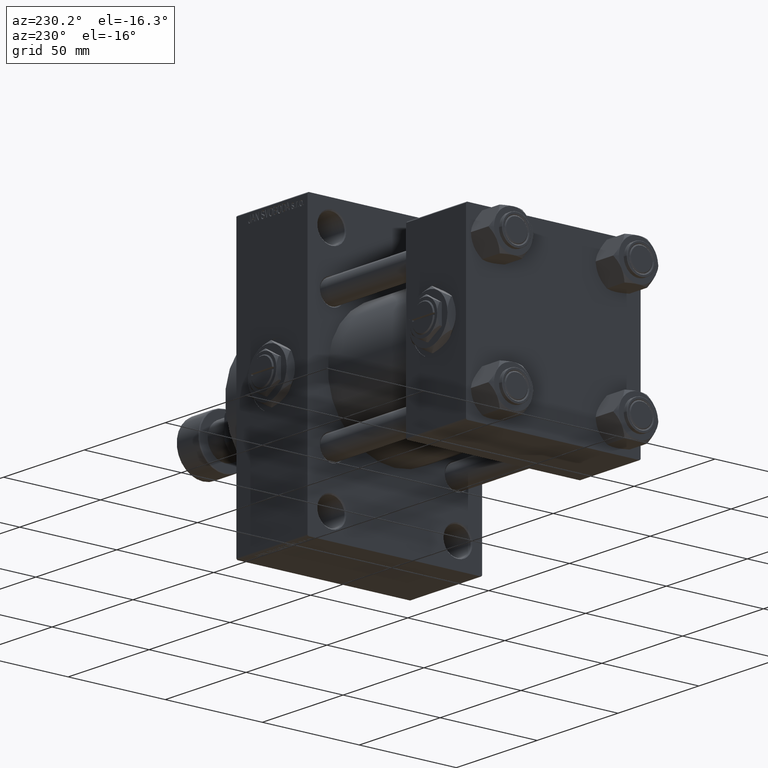
[diagram: clean part render]
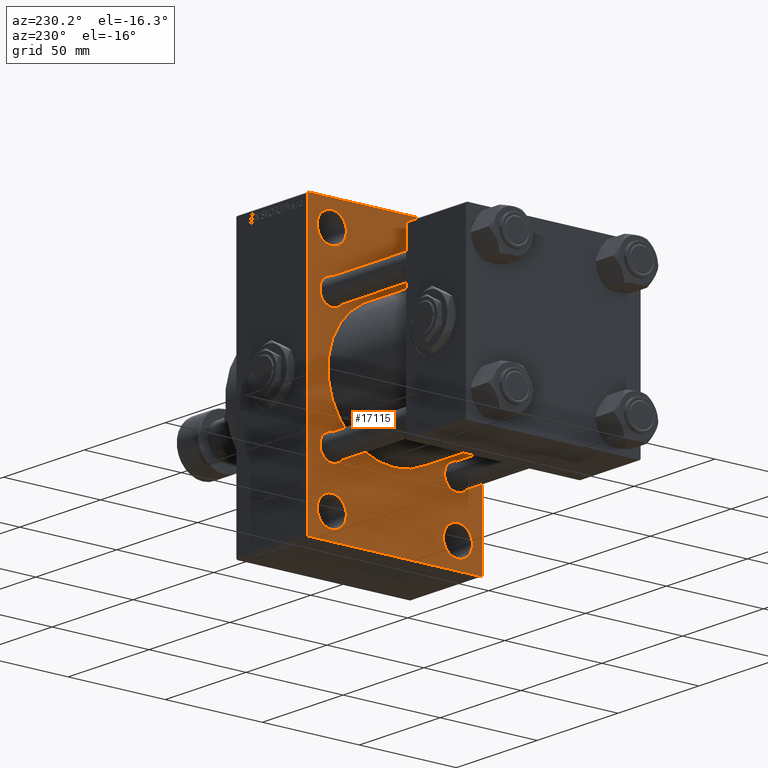
[diagram: same view with one face highlighted and labeled with its STEP entity id]
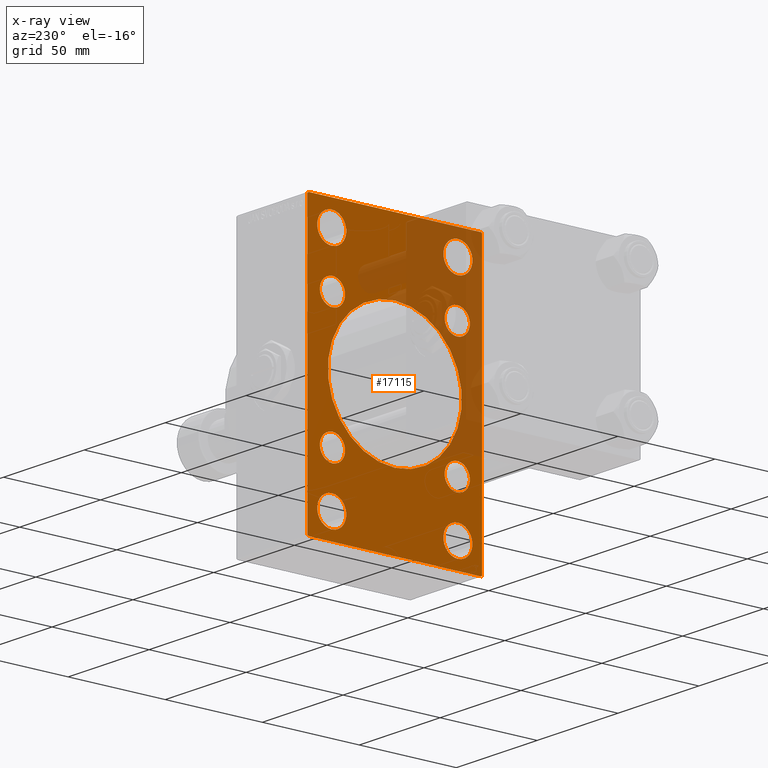
[diagram: x-ray of the same camera — body ghosted, the highlighted face saturated]
A machine part, auxiliary view. The second image highlights one B-rep face of the part: STEP entity #17115.
The next image is the same camera in x-ray: the body ghosted, the highlighted face saturated — about 30% of this face is hidden behind the body in this view.
In plain terms, the highlighted planar face has unit normal (-1, 0, 0).
Its self-contained STEP definition (entity closure, byte-faithful):
#410 = EDGE_CURVE ( 'NONE', #43009, #24947, #30608, .T. ) ;
#615 = EDGE_CURVE ( 'NONE', #5200, #47002, #43869, .T. ) ;
#706 = FACE_BOUND ( 'NONE', #48557, .T. ) ;
#710 = DIRECTION ( 'NONE',  ( 0.000000000000000000, 0.7071067811865672237, -0.7071067811865279218 ) ) ;
#942 = FACE_BOUND ( 'NONE', #14683, .T. ) ;
#1023 = DIRECTION ( 'NONE',  ( 1.000000000000000000, 0.000000000000000000, 0.000000000000000000 ) ) ;
#1191 = VECTOR ( 'NONE', #40916, 999.9999999999998863 ) ;
#1874 = VECTOR ( 'NONE', #29999, 1000.000000000000000 ) ;
#1892 = CARTESIAN_POINT ( 'NONE',  ( 98.00000000000000000, 32.14999999999999147, -32.15000000000000568 ) ) ;
#1914 = DIRECTION ( 'NONE',  ( 1.000000000000000000, -0.000000000000000000, 0.000000000000000000 ) ) ;
#1969 = ORIENTED_EDGE ( 'NONE', *, *, #615, .T. ) ;
#1976 = CARTESIAN_POINT ( 'NONE',  ( 98.00000000000000000, 32.50000000000000711, -58.50000000000000000 ) ) ;
#2140 = LINE ( 'NONE', #48174, #27123 ) ;
#2181 = VERTEX_POINT ( 'NONE', #29691 ) ;
#2816 = DIRECTION ( 'NONE',  ( 1.000000000000000000, -0.000000000000000000, 0.000000000000000000 ) ) ;
#3197 = DIRECTION ( 'NONE',  ( 1.000000000000000000, -0.000000000000000000, 0.000000000000000000 ) ) ;
#3793 = CARTESIAN_POINT ( 'NONE',  ( 98.00000000000000000, 45.00000000000001421, -70.50000000000001421 ) ) ;
#4529 = VERTEX_POINT ( 'NONE', #30896 ) ;
#4690 = VERTEX_POINT ( 'NONE', #20819 ) ;
#4801 = CARTESIAN_POINT ( 'NONE',  ( 98.00000000000000000, -44.49999999999994316, -71.00000000000000000 ) ) ;
#4820 = CARTESIAN_POINT ( 'NONE',  ( 98.00000000000000000, -2.602085213965210642E-15, 0.000000000000000000 ) ) ;
#5196 = DIRECTION ( 'NONE',  ( 0.000000000000000000, 0.000000000000000000, 1.000000000000000000 ) ) ;
#5200 = VERTEX_POINT ( 'NONE', #48022 ) ;
#5325 = CIRCLE ( 'NONE', #41496, 6.500000000000005329 ) ;
#5698 = DIRECTION ( 'NONE',  ( 0.000000000000000000, 0.000000000000000000, 1.000000000000000000 ) ) ;
#5909 = CIRCLE ( 'NONE', #8327, 7.499999999999951150 ) ;
#5949 = AXIS2_PLACEMENT_3D ( 'NONE', #8978, #39665, #5196 ) ;
#6120 = CIRCLE ( 'NONE', #29444, 7.499999999999951150 ) ;
#6475 = DIRECTION ( 'NONE',  ( 0.000000000000000000, 0.000000000000000000, 1.000000000000000000 ) ) ;
#6704 = AXIS2_PLACEMENT_3D ( 'NONE', #20957, #2816, #25485 ) ;
#6754 = CARTESIAN_POINT ( 'NONE',  ( 98.00000000000000000, -57.75000000000059686, -57.74999999999899103 ) ) ;
#6828 = VERTEX_POINT ( 'NONE', #8085 ) ;
#7355 = CARTESIAN_POINT ( 'NONE',  ( 98.00000000000000000, 32.14999999999999147, -38.65000000000001279 ) ) ;
#7571 = CARTESIAN_POINT ( 'NONE',  ( 98.00000000000000000, 44.50000000000004263, -70.99999999999998579 ) ) ;
#7825 = CIRCLE ( 'NONE', #25497, 6.500000000000005329 ) ;
#7866 = EDGE_CURVE ( 'NONE', #34060, #4529, #24382, .T. ) ;
#8085 = CARTESIAN_POINT ( 'NONE',  ( 98.00000000000000000, -32.50000000000000000, 51.00000000000005684 ) ) ;
#8258 = EDGE_CURVE ( 'NONE', #31623, #45007, #46086, .T. ) ;
#8279 = LINE ( 'NONE', #38964, #33586 ) ;
#8327 = AXIS2_PLACEMENT_3D ( 'NONE', #42895, #8944, #39145 ) ;
#8785 = AXIS2_PLACEMENT_3D ( 'NONE', #12949, #47637, #29047 ) ;
#8944 = DIRECTION ( 'NONE',  ( 1.000000000000000000, -0.000000000000000000, 0.000000000000000000 ) ) ;
#8978 = CARTESIAN_POINT ( 'NONE',  ( 98.00000000000000000, 32.50000000000000711, 58.50000000000000711 ) ) ;
#9177 = DIRECTION ( 'NONE',  ( 0.000000000000000000, -4.886545002751570165E-17, -1.000000000000000000 ) ) ;
#9608 = VERTEX_POINT ( 'NONE', #21363 ) ;
#9791 = EDGE_CURVE ( 'NONE', #23404, #2181, #36525, .T. ) ;
#10305 = CIRCLE ( 'NONE', #39240, 6.499999999999999112 ) ;
#10592 = ORIENTED_EDGE ( 'NONE', *, *, #26551, .T. ) ;
#10739 = CIRCLE ( 'NONE', #6704, 7.499999999999958256 ) ;
#10779 = AXIS2_PLACEMENT_3D ( 'NONE', #1892, #29592, #17016 ) ;
#11449 = VERTEX_POINT ( 'NONE', #18115 ) ;
#11819 = DIRECTION ( 'NONE',  ( 0.000000000000000000, 0.000000000000000000, 1.000000000000000000 ) ) ;
#11851 = CARTESIAN_POINT ( 'NONE',  ( 98.00000000000000000, 32.14999999999999147, 25.65000000000000213 ) ) ;
#11860 = DIRECTION ( 'NONE',  ( 0.000000000000000000, 0.000000000000000000, 1.000000000000000000 ) ) ;
#11890 = EDGE_CURVE ( 'NONE', #33746, #6828, #5909, .T. ) ;
#12016 = CIRCLE ( 'NONE', #8785, 7.499999999999958256 ) ;
#12232 = ORIENTED_EDGE ( 'NONE', *, *, #9791, .T. ) ;
#12289 = PLANE ( 'NONE',  #12518 ) ;
#12518 = AXIS2_PLACEMENT_3D ( 'NONE', #19857, #35934, #19606 ) ;
#12600 = CARTESIAN_POINT ( 'NONE',  ( 98.00000000000000000, -44.99999999999997158, 70.99999999999998579 ) ) ;
#12949 = CARTESIAN_POINT ( 'NONE',  ( 98.00000000000000000, -32.50000000000000000, -58.49999999999999289 ) ) ;
#13488 = EDGE_CURVE ( 'NONE', #9608, #14168, #46055, .T. ) ;
#13558 = ORIENTED_EDGE ( 'NONE', *, *, #33941, .T. ) ;
#13813 = DIRECTION ( 'NONE',  ( 0.000000000000000000, -0.7071067811865376918, 0.7071067811865574537 ) ) ;
#13823 = CIRCLE ( 'NONE', #30707, 6.500000000000005329 ) ;
#14168 = VERTEX_POINT ( 'NONE', #34354 ) ;
#14320 = DIRECTION ( 'NONE',  ( 0.000000000000000000, 0.000000000000000000, 1.000000000000000000 ) ) ;
#14324 = CIRCLE ( 'NONE', #45614, 34.50000000000000000 ) ;
#14399 = EDGE_CURVE ( 'NONE', #20987, #43864, #38132, .T. ) ;
#14413 = DIRECTION ( 'NONE',  ( 1.000000000000000000, -0.000000000000000000, 0.000000000000000000 ) ) ;
#14683 = EDGE_LOOP ( 'NONE', ( #22607, #37322 ) ) ;
#14897 = CARTESIAN_POINT ( 'NONE',  ( 98.00000000000000000, -32.50000000000000000, 58.50000000000000711 ) ) ;
#15476 = DIRECTION ( 'NONE',  ( 1.000000000000000000, -0.000000000000000000, 0.000000000000000000 ) ) ;
#15645 = DIRECTION ( 'NONE',  ( 0.000000000000000000, 0.000000000000000000, -1.000000000000000000 ) ) ;
#16317 = FACE_BOUND ( 'NONE', #28463, .T. ) ;
#17016 = DIRECTION ( 'NONE',  ( 0.000000000000000000, 0.000000000000000000, 1.000000000000000000 ) ) ;
#17115 = ADVANCED_FACE ( 'NONE', ( #24359, #23384, #28382, #16317, #28134, #942, #46729, #706, #31661, #20340 ), #12289, .T. ) ;
#17540 = CARTESIAN_POINT ( 'NONE',  ( 98.00000000000000000, 57.74999999999938893, -57.75000000000100187 ) ) ;
#17615 = CARTESIAN_POINT ( 'NONE',  ( 98.00000000000000000, 44.49999999999999289, 71.00000000000000000 ) ) ;
#17940 = CARTESIAN_POINT ( 'NONE',  ( 98.00000000000000000, -32.14999999999997726, 32.15000000000001279 ) ) ;
#18085 = EDGE_LOOP ( 'NONE', ( #30274, #13558, #19623, #46462, #48767, #30998, #1969, #36318 ) ) ;
#18115 = CARTESIAN_POINT ( 'NONE',  ( 98.00000000000000000, 32.14999999999999147, 38.65000000000001279 ) ) ;
#18223 = EDGE_CURVE ( 'NONE', #2181, #23404, #6120, .T. ) ;
#18284 = CIRCLE ( 'NONE', #32748, 7.499999999999951150 ) ;
#18387 = AXIS2_PLACEMENT_3D ( 'NONE', #24887, #28407, #40471 ) ;
#18461 = EDGE_CURVE ( 'NONE', #45007, #31623, #5325, .T. ) ;
#18593 = CARTESIAN_POINT ( 'NONE',  ( 98.00000000000000000, -2.602085213965210642E-15, 34.50000000000000000 ) ) ;
#18754 = CARTESIAN_POINT ( 'NONE',  ( 98.00000000000000000, 32.50000000000000711, 58.50000000000000711 ) ) ;
#19062 = EDGE_CURVE ( 'NONE', #43864, #20987, #30313, .T. ) ;
#19606 = DIRECTION ( 'NONE',  ( -0.000000000000000000, 0.000000000000000000, 1.000000000000000000 ) ) ;
#19623 = ORIENTED_EDGE ( 'NONE', *, *, #13488, .F. ) ;
#19857 = CARTESIAN_POINT ( 'NONE',  ( 98.00000000000000000, 0.000000000000000000, 0.000000000000000000 ) ) ;
#20088 = EDGE_CURVE ( 'NONE', #21750, #45343, #7825, .T. ) ;
#20340 = FACE_OUTER_BOUND ( 'NONE', #18085, .T. ) ;
#20489 = EDGE_CURVE ( 'NONE', #22359, #30873, #2140, .T. ) ;
#20812 = EDGE_CURVE ( 'NONE', #22600, #5200, #8279, .T. ) ;
#20819 = CARTESIAN_POINT ( 'NONE',  ( 98.00000000000000000, -32.50000000000000000, -51.00000000000002842 ) ) ;
#20957 = CARTESIAN_POINT ( 'NONE',  ( 98.00000000000000000, -32.50000000000000000, -58.49999999999999289 ) ) ;
#20987 = VERTEX_POINT ( 'NONE', #41440 ) ;
#21363 = CARTESIAN_POINT ( 'NONE',  ( 98.00000000000000000, -44.99999999999997158, 70.49999999999998579 ) ) ;
#21437 = AXIS2_PLACEMENT_3D ( 'NONE', #30939, #46258, #11819 ) ;
#21605 = EDGE_CURVE ( 'NONE', #11449, #23579, #10305, .T. ) ;
#21750 = VERTEX_POINT ( 'NONE', #28211 ) ;
#21873 = DIRECTION ( 'NONE',  ( 1.000000000000000000, -0.000000000000000000, 0.000000000000000000 ) ) ;
#22359 = VERTEX_POINT ( 'NONE', #7571 ) ;
#22484 = EDGE_LOOP ( 'NONE', ( #37524, #34005 ) ) ;
#22600 = VERTEX_POINT ( 'NONE', #17615 ) ;
#22607 = ORIENTED_EDGE ( 'NONE', *, *, #21605, .T. ) ;
#22885 = VECTOR ( 'NONE', #15645, 1000.000000000000000 ) ;
#23384 = FACE_BOUND ( 'NONE', #22484, .T. ) ;
#23404 = VERTEX_POINT ( 'NONE', #45802 ) ;
#23579 = VERTEX_POINT ( 'NONE', #11851 ) ;
#24359 = FACE_BOUND ( 'NONE', #42376, .T. ) ;
#24382 = CIRCLE ( 'NONE', #45256, 34.50000000000000000 ) ;
#24887 = CARTESIAN_POINT ( 'NONE',  ( 98.00000000000000000, 32.50000000000000711, -58.50000000000000000 ) ) ;
#24947 = VERTEX_POINT ( 'NONE', #45648 ) ;
#25058 = ORIENTED_EDGE ( 'NONE', *, *, #7866, .T. ) ;
#25456 = ORIENTED_EDGE ( 'NONE', *, *, #18223, .T. ) ;
#25485 = DIRECTION ( 'NONE',  ( 0.000000000000000000, 0.000000000000000000, 1.000000000000000000 ) ) ;
#25497 = AXIS2_PLACEMENT_3D ( 'NONE', #48471, #44445, #6475 ) ;
#25499 = ORIENTED_EDGE ( 'NONE', *, *, #41694, .T. ) ;
#25622 = CARTESIAN_POINT ( 'NONE',  ( 98.00000000000000000, 32.14999999999999147, 32.15000000000000568 ) ) ;
#25647 = LINE ( 'NONE', #6754, #36598 ) ;
#25672 = CARTESIAN_POINT ( 'NONE',  ( 98.00000000000000000, -32.50000000000000000, -65.99999999999994316 ) ) ;
#26551 = EDGE_CURVE ( 'NONE', #45343, #21750, #13823, .T. ) ;
#27123 = VECTOR ( 'NONE', #44388, 1000.000000000000000 ) ;
#27171 = CARTESIAN_POINT ( 'NONE',  ( 98.00000000000000000, -2.602085213965210642E-15, 0.000000000000000000 ) ) ;
#27194 = CARTESIAN_POINT ( 'NONE',  ( 98.00000000000000000, -32.50000000000000000, 65.99999999999995737 ) ) ;
#28003 = EDGE_CURVE ( 'NONE', #22600, #44284, #49596, .T. ) ;
#28134 = FACE_BOUND ( 'NONE', #36202, .T. ) ;
#28186 = VECTOR ( 'NONE', #9177, 1000.000000000000000 ) ;
#28211 = CARTESIAN_POINT ( 'NONE',  ( 98.00000000000000000, -32.14999999999997726, -38.65000000000001990 ) ) ;
#28271 = CARTESIAN_POINT ( 'NONE',  ( 98.00000000000000000, 32.14999999999999147, -32.15000000000000568 ) ) ;
#28330 = VECTOR ( 'NONE', #47463, 1000.000000000000000 ) ;
#28382 = FACE_BOUND ( 'NONE', #30011, .T. ) ;
#28407 = DIRECTION ( 'NONE',  ( 1.000000000000000000, -0.000000000000000000, 0.000000000000000000 ) ) ;
#28446 = ORIENTED_EDGE ( 'NONE', *, *, #20088, .T. ) ;
#28463 = EDGE_LOOP ( 'NONE', ( #12232, #25456 ) ) ;
#28568 = ORIENTED_EDGE ( 'NONE', *, *, #410, .T. ) ;
#29047 = DIRECTION ( 'NONE',  ( 0.000000000000000000, 0.000000000000000000, 1.000000000000000000 ) ) ;
#29444 = AXIS2_PLACEMENT_3D ( 'NONE', #18754, #15476, #45889 ) ;
#29592 = DIRECTION ( 'NONE',  ( 1.000000000000000000, -0.000000000000000000, 0.000000000000000000 ) ) ;
#29596 = AXIS2_PLACEMENT_3D ( 'NONE', #25622, #3197, #29651 ) ;
#29651 = DIRECTION ( 'NONE',  ( 0.000000000000000000, 0.000000000000000000, 1.000000000000000000 ) ) ;
#29691 = CARTESIAN_POINT ( 'NONE',  ( 98.00000000000000000, 32.50000000000000711, 51.00000000000005684 ) ) ;
#29765 = DIRECTION ( 'NONE',  ( 0.000000000000000000, 0.000000000000000000, 1.000000000000000000 ) ) ;
#29999 = DIRECTION ( 'NONE',  ( -0.000000000000000000, 0.7071067811865426878, 0.7071067811865524577 ) ) ;
#30011 = EDGE_LOOP ( 'NONE', ( #28568, #40168 ) ) ;
#30274 = ORIENTED_EDGE ( 'NONE', *, *, #20489, .T. ) ;
#30313 = CIRCLE ( 'NONE', #21437, 6.500000000000005329 ) ;
#30480 = EDGE_CURVE ( 'NONE', #38929, #4690, #10739, .T. ) ;
#30608 = CIRCLE ( 'NONE', #33815, 7.499999999999951150 ) ;
#30696 = EDGE_CURVE ( 'NONE', #9608, #44284, #42046, .T. ) ;
#30707 = AXIS2_PLACEMENT_3D ( 'NONE', #39674, #1914, #5698 ) ;
#30738 = CARTESIAN_POINT ( 'NONE',  ( 98.00000000000000000, -57.75000000000028422, 57.74999999999948841 ) ) ;
#30873 = VERTEX_POINT ( 'NONE', #4801 ) ;
#30896 = CARTESIAN_POINT ( 'NONE',  ( 98.00000000000000000, 1.622946243093157097E-15, -34.50000000000000000 ) ) ;
#30938 = ORIENTED_EDGE ( 'NONE', *, *, #14399, .T. ) ;
#30939 = CARTESIAN_POINT ( 'NONE',  ( 98.00000000000000000, -32.14999999999997726, 32.15000000000001279 ) ) ;
#30998 = ORIENTED_EDGE ( 'NONE', *, *, #20812, .T. ) ;
#31623 = VERTEX_POINT ( 'NONE', #7355 ) ;
#31661 = FACE_BOUND ( 'NONE', #35586, .T. ) ;
#32058 = CARTESIAN_POINT ( 'NONE',  ( 98.00000000000000000, 32.50000000000000711, -51.00000000000004263 ) ) ;
#32748 = AXIS2_PLACEMENT_3D ( 'NONE', #14897, #37550, #11860 ) ;
#32805 = DIRECTION ( 'NONE',  ( 1.000000000000000000, -0.000000000000000000, 0.000000000000000000 ) ) ;
#33125 = ORIENTED_EDGE ( 'NONE', *, *, #8258, .T. ) ;
#33252 = ORIENTED_EDGE ( 'NONE', *, *, #43397, .T. ) ;
#33271 = EDGE_CURVE ( 'NONE', #47002, #22359, #46457, .T. ) ;
#33385 = CARTESIAN_POINT ( 'NONE',  ( 98.00000000000000000, -32.14999999999997726, -25.65000000000000568 ) ) ;
#33586 = VECTOR ( 'NONE', #710, 1000.000000000000000 ) ;
#33693 = ORIENTED_EDGE ( 'NONE', *, *, #11890, .T. ) ;
#33746 = VERTEX_POINT ( 'NONE', #27194 ) ;
#33815 = AXIS2_PLACEMENT_3D ( 'NONE', #1976, #21873, #14320 ) ;
#33941 = EDGE_CURVE ( 'NONE', #30873, #14168, #25647, .T. ) ;
#34005 = ORIENTED_EDGE ( 'NONE', *, *, #30480, .T. ) ;
#34060 = VERTEX_POINT ( 'NONE', #18593 ) ;
#34354 = CARTESIAN_POINT ( 'NONE',  ( 98.00000000000000000, -44.99999999999997158, -70.49999999999998579 ) ) ;
#35188 = CIRCLE ( 'NONE', #29596, 6.499999999999999112 ) ;
#35586 = EDGE_LOOP ( 'NONE', ( #25058, #33252 ) ) ;
#35934 = DIRECTION ( 'NONE',  ( -1.000000000000000000, 0.000000000000000000, -0.000000000000000000 ) ) ;
#36077 = DIRECTION ( 'NONE',  ( 1.000000000000000000, -0.000000000000000000, 0.000000000000000000 ) ) ;
#36202 = EDGE_LOOP ( 'NONE', ( #39994, #30938 ) ) ;
#36318 = ORIENTED_EDGE ( 'NONE', *, *, #33271, .T. ) ;
#36525 = CIRCLE ( 'NONE', #5949, 7.499999999999951150 ) ;
#36598 = VECTOR ( 'NONE', #13813, 999.9999999999998863 ) ;
#37322 = ORIENTED_EDGE ( 'NONE', *, *, #42565, .T. ) ;
#37524 = ORIENTED_EDGE ( 'NONE', *, *, #46388, .T. ) ;
#37550 = DIRECTION ( 'NONE',  ( 1.000000000000000000, -0.000000000000000000, 0.000000000000000000 ) ) ;
#37942 = CARTESIAN_POINT ( 'NONE',  ( 98.00000000000000000, 32.14999999999999147, -25.64999999999999858 ) ) ;
#38132 = CIRCLE ( 'NONE', #46966, 6.500000000000005329 ) ;
#38929 = VERTEX_POINT ( 'NONE', #25672 ) ;
#38964 = CARTESIAN_POINT ( 'NONE',  ( 98.00000000000000000, 57.74999999999875655, 57.75000000000196820 ) ) ;
#39145 = DIRECTION ( 'NONE',  ( 0.000000000000000000, 0.000000000000000000, 1.000000000000000000 ) ) ;
#39240 = AXIS2_PLACEMENT_3D ( 'NONE', #40586, #32805, #48122 ) ;
#39665 = DIRECTION ( 'NONE',  ( 1.000000000000000000, -0.000000000000000000, 0.000000000000000000 ) ) ;
#39674 = CARTESIAN_POINT ( 'NONE',  ( 98.00000000000000000, -32.14999999999997726, -32.15000000000001279 ) ) ;
#39994 = ORIENTED_EDGE ( 'NONE', *, *, #19062, .T. ) ;
#40168 = ORIENTED_EDGE ( 'NONE', *, *, #43718, .T. ) ;
#40471 = DIRECTION ( 'NONE',  ( 0.000000000000000000, 0.000000000000000000, 1.000000000000000000 ) ) ;
#40586 = CARTESIAN_POINT ( 'NONE',  ( 98.00000000000000000, 32.14999999999999147, 32.15000000000000568 ) ) ;
#40839 = DIRECTION ( 'NONE',  ( 0.000000000000000000, 0.000000000000000000, 1.000000000000000000 ) ) ;
#40916 = DIRECTION ( 'NONE',  ( -0.000000000000000000, -0.7071067811865574537, -0.7071067811865376918 ) ) ;
#41440 = CARTESIAN_POINT ( 'NONE',  ( 98.00000000000000000, -32.14999999999997726, 25.65000000000000213 ) ) ;
#41496 = AXIS2_PLACEMENT_3D ( 'NONE', #28271, #36077, #40839 ) ;
#41694 = EDGE_CURVE ( 'NONE', #6828, #33746, #18284, .T. ) ;
#42046 = LINE ( 'NONE', #30738, #1874 ) ;
#42376 = EDGE_LOOP ( 'NONE', ( #33693, #25499 ) ) ;
#42565 = EDGE_CURVE ( 'NONE', #23579, #11449, #35188, .T. ) ;
#42895 = CARTESIAN_POINT ( 'NONE',  ( 98.00000000000000000, -32.50000000000000000, 58.50000000000000711 ) ) ;
#43009 = VERTEX_POINT ( 'NONE', #32058 ) ;
#43397 = EDGE_CURVE ( 'NONE', #4529, #34060, #14324, .T. ) ;
#43718 = EDGE_CURVE ( 'NONE', #24947, #43009, #48051, .T. ) ;
#43864 = VERTEX_POINT ( 'NONE', #47617 ) ;
#43869 = LINE ( 'NONE', #44115, #28186 ) ;
#44115 = CARTESIAN_POINT ( 'NONE',  ( 98.00000000000000000, 45.00000000000002132, 71.00000000000000000 ) ) ;
#44284 = VERTEX_POINT ( 'NONE', #48074 ) ;
#44388 = DIRECTION ( 'NONE',  ( 0.000000000000000000, -1.000000000000000000, -1.541976423090495633E-16 ) ) ;
#44445 = DIRECTION ( 'NONE',  ( 1.000000000000000000, -0.000000000000000000, 0.000000000000000000 ) ) ;
#45007 = VERTEX_POINT ( 'NONE', #37942 ) ;
#45256 = AXIS2_PLACEMENT_3D ( 'NONE', #27171, #49791, #49550 ) ;
#45343 = VERTEX_POINT ( 'NONE', #33385 ) ;
#45614 = AXIS2_PLACEMENT_3D ( 'NONE', #4820, #1023, #47051 ) ;
#45648 = CARTESIAN_POINT ( 'NONE',  ( 98.00000000000000000, 32.50000000000000711, -65.99999999999994316 ) ) ;
#45802 = CARTESIAN_POINT ( 'NONE',  ( 98.00000000000000000, 32.50000000000000711, 65.99999999999995737 ) ) ;
#45807 = CARTESIAN_POINT ( 'NONE',  ( 98.00000000000000000, 45.00000000000002132, 71.00000000000000000 ) ) ;
#45889 = DIRECTION ( 'NONE',  ( 0.000000000000000000, 0.000000000000000000, 1.000000000000000000 ) ) ;
#46055 = LINE ( 'NONE', #12600, #22885 ) ;
#46086 = CIRCLE ( 'NONE', #10779, 6.500000000000005329 ) ;
#46204 = ORIENTED_EDGE ( 'NONE', *, *, #18461, .T. ) ;
#46258 = DIRECTION ( 'NONE',  ( 1.000000000000000000, -0.000000000000000000, 0.000000000000000000 ) ) ;
#46388 = EDGE_CURVE ( 'NONE', #4690, #38929, #12016, .T. ) ;
#46457 = LINE ( 'NONE', #17540, #1191 ) ;
#46462 = ORIENTED_EDGE ( 'NONE', *, *, #30696, .T. ) ;
#46729 = FACE_BOUND ( 'NONE', #48310, .T. ) ;
#46966 = AXIS2_PLACEMENT_3D ( 'NONE', #17940, #14413, #29765 ) ;
#47002 = VERTEX_POINT ( 'NONE', #3793 ) ;
#47051 = DIRECTION ( 'NONE',  ( 0.000000000000000000, 0.000000000000000000, -1.000000000000000000 ) ) ;
#47463 = DIRECTION ( 'NONE',  ( 0.000000000000000000, -1.000000000000000000, -1.541976423090495387E-16 ) ) ;
#47617 = CARTESIAN_POINT ( 'NONE',  ( 98.00000000000000000, -32.14999999999997726, 38.65000000000002700 ) ) ;
#47637 = DIRECTION ( 'NONE',  ( 1.000000000000000000, -0.000000000000000000, 0.000000000000000000 ) ) ;
#48022 = CARTESIAN_POINT ( 'NONE',  ( 98.00000000000000000, 45.00000000000002132, 70.50000000000000000 ) ) ;
#48051 = CIRCLE ( 'NONE', #18387, 7.499999999999951150 ) ;
#48074 = CARTESIAN_POINT ( 'NONE',  ( 98.00000000000000000, -44.49999999999995026, 70.99999999999998579 ) ) ;
#48122 = DIRECTION ( 'NONE',  ( 0.000000000000000000, 0.000000000000000000, 1.000000000000000000 ) ) ;
#48174 = CARTESIAN_POINT ( 'NONE',  ( 98.00000000000000000, 45.00000000000001421, -70.99999999999998579 ) ) ;
#48310 = EDGE_LOOP ( 'NONE', ( #46204, #33125 ) ) ;
#48471 = CARTESIAN_POINT ( 'NONE',  ( 98.00000000000000000, -32.14999999999997726, -32.15000000000001279 ) ) ;
#48557 = EDGE_LOOP ( 'NONE', ( #10592, #28446 ) ) ;
#48767 = ORIENTED_EDGE ( 'NONE', *, *, #28003, .F. ) ;
#49550 = DIRECTION ( 'NONE',  ( 0.000000000000000000, 0.000000000000000000, -1.000000000000000000 ) ) ;
#49596 = LINE ( 'NONE', #45807, #28330 ) ;
#49791 = DIRECTION ( 'NONE',  ( 1.000000000000000000, 0.000000000000000000, 0.000000000000000000 ) ) ;